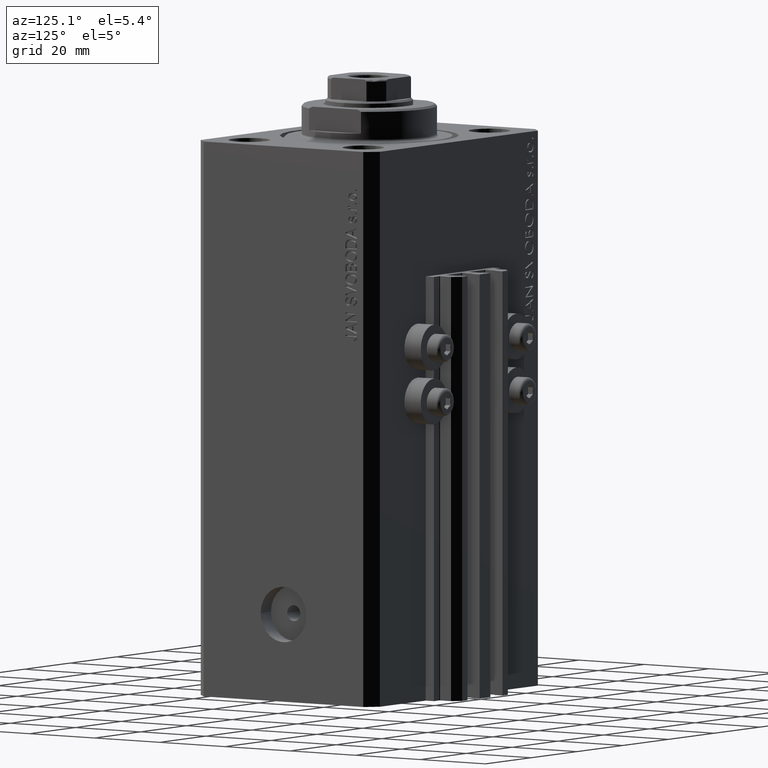
[diagram: clean part render]
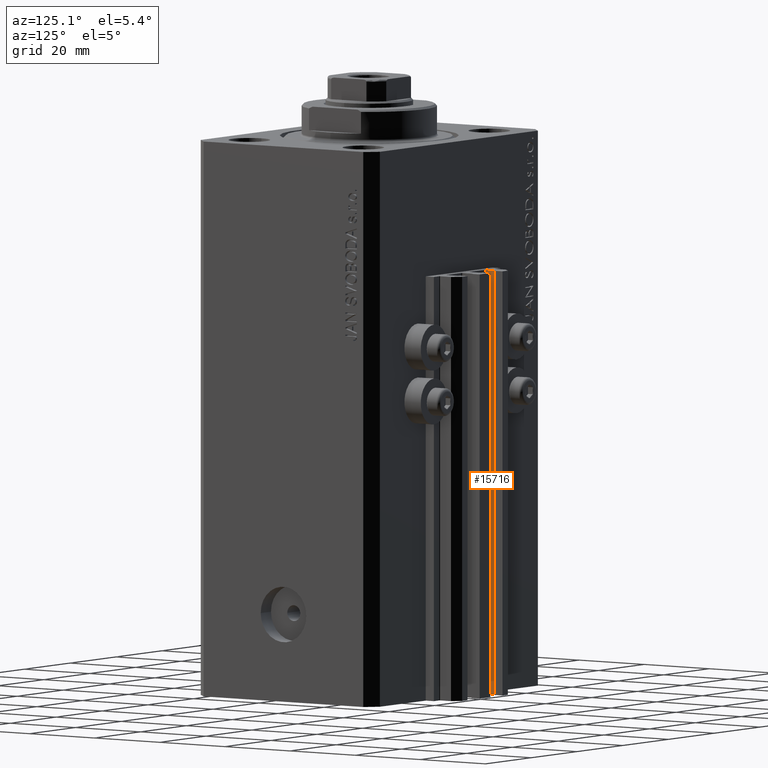
[diagram: same view with one face highlighted and labeled with its STEP entity id]
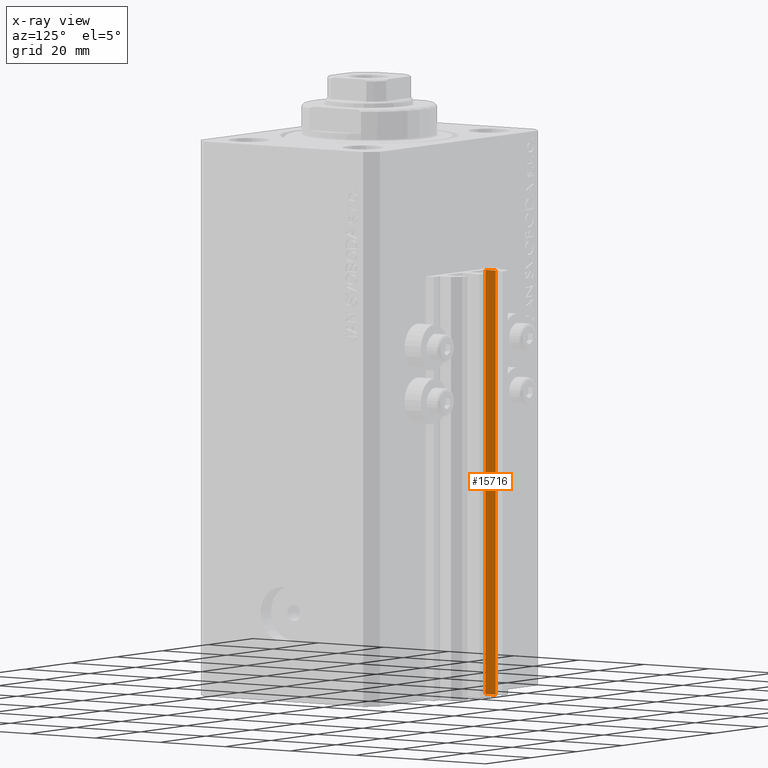
[diagram: x-ray of the same camera — body ghosted, the highlighted face saturated]
A machine part, auxiliary view. The second image highlights one B-rep face of the part: STEP entity #15716.
The next image is the same camera in x-ray: the body ghosted, the highlighted face saturated — about 0% of this face is hidden behind the body in this view.
In plain terms, the highlighted planar face has unit normal (1, 0, 0).
Its self-contained STEP definition (entity closure, byte-faithful):
#1944 = VERTEX_POINT ( 'NONE', #25911 ) ;
#3894 = EDGE_LOOP ( 'NONE', ( #10323, #19788, #44692, #35222 ) ) ;
#4555 = DIRECTION ( 'NONE',  ( 1.000000000000000000, 1.084202172485505223E-15, -0.000000000000000000 ) ) ;
#5087 = LINE ( 'NONE', #30425, #17588 ) ;
#5889 = VECTOR ( 'NONE', #37244, 1000.000000000000000 ) ;
#7768 = VECTOR ( 'NONE', #30097, 1000.000000000000000 ) ;
#8470 = CARTESIAN_POINT ( 'NONE',  ( -8.400000000000000355, 32.89999999999999858, -140.0000000000000000 ) ) ;
#10323 = ORIENTED_EDGE ( 'NONE', *, *, #32267, .F. ) ;
#11827 = EDGE_CURVE ( 'NONE', #37172, #41983, #31731, .T. ) ;
#12635 = LINE ( 'NONE', #37044, #7768 ) ;
#14604 = PLANE ( 'NONE',  #16438 ) ;
#15318 = CARTESIAN_POINT ( 'NONE',  ( -8.399999999999996803, 29.69999999999999929, -140.0000000000000000 ) ) ;
#15716 = ADVANCED_FACE ( 'NONE', ( #32114 ), #14604, .T. ) ;
#16438 = AXIS2_PLACEMENT_3D ( 'NONE', #15318, #4555, #29893 ) ;
#16625 = VECTOR ( 'NONE', #28382, 1000.000000000000000 ) ;
#17588 = VECTOR ( 'NONE', #45511, 1000.000000000000000 ) ;
#19788 = ORIENTED_EDGE ( 'NONE', *, *, #24336, .F. ) ;
#21646 = CARTESIAN_POINT ( 'NONE',  ( -8.400000000000000355, 32.89999999999999858, -33.00000000000000000 ) ) ;
#22347 = CARTESIAN_POINT ( 'NONE',  ( -8.399999999999996803, 29.69999999999999929, -140.0000000000000000 ) ) ;
#24336 = EDGE_CURVE ( 'NONE', #27041, #1944, #36775, .T. ) ;
#25911 = CARTESIAN_POINT ( 'NONE',  ( -8.399999999999996803, 29.69999999999999929, -33.00000000000000000 ) ) ;
#27041 = VERTEX_POINT ( 'NONE', #22347 ) ;
#28144 = CARTESIAN_POINT ( 'NONE',  ( -8.400000000000000355, 32.89999999999999858, -140.0000000000000000 ) ) ;
#28382 = DIRECTION ( 'NONE',  ( 0.000000000000000000, 0.000000000000000000, 1.000000000000000000 ) ) ;
#29893 = DIRECTION ( 'NONE',  ( -1.084202172485505223E-15, 1.000000000000000000, 0.000000000000000000 ) ) ;
#30097 = DIRECTION ( 'NONE',  ( -1.084202172485505223E-15, 1.000000000000000000, 0.000000000000000000 ) ) ;
#30425 = CARTESIAN_POINT ( 'NONE',  ( -8.399999999999996803, 29.69999999999999929, -33.00000000000000000 ) ) ;
#31731 = LINE ( 'NONE', #28144, #16625 ) ;
#32114 = FACE_OUTER_BOUND ( 'NONE', #3894, .T. ) ;
#32267 = EDGE_CURVE ( 'NONE', #1944, #41983, #5087, .T. ) ;
#35222 = ORIENTED_EDGE ( 'NONE', *, *, #11827, .T. ) ;
#36775 = LINE ( 'NONE', #44920, #5889 ) ;
#37044 = CARTESIAN_POINT ( 'NONE',  ( -8.399999999999996803, 29.69999999999999929, -140.0000000000000000 ) ) ;
#37172 = VERTEX_POINT ( 'NONE', #8470 ) ;
#37244 = DIRECTION ( 'NONE',  ( 0.000000000000000000, 0.000000000000000000, 1.000000000000000000 ) ) ;
#39667 = EDGE_CURVE ( 'NONE', #27041, #37172, #12635, .T. ) ;
#41983 = VERTEX_POINT ( 'NONE', #21646 ) ;
#44692 = ORIENTED_EDGE ( 'NONE', *, *, #39667, .T. ) ;
#44920 = CARTESIAN_POINT ( 'NONE',  ( -8.399999999999996803, 29.69999999999999929, -140.0000000000000000 ) ) ;
#45511 = DIRECTION ( 'NONE',  ( -1.084202172485505223E-15, 1.000000000000000000, 0.000000000000000000 ) ) ;